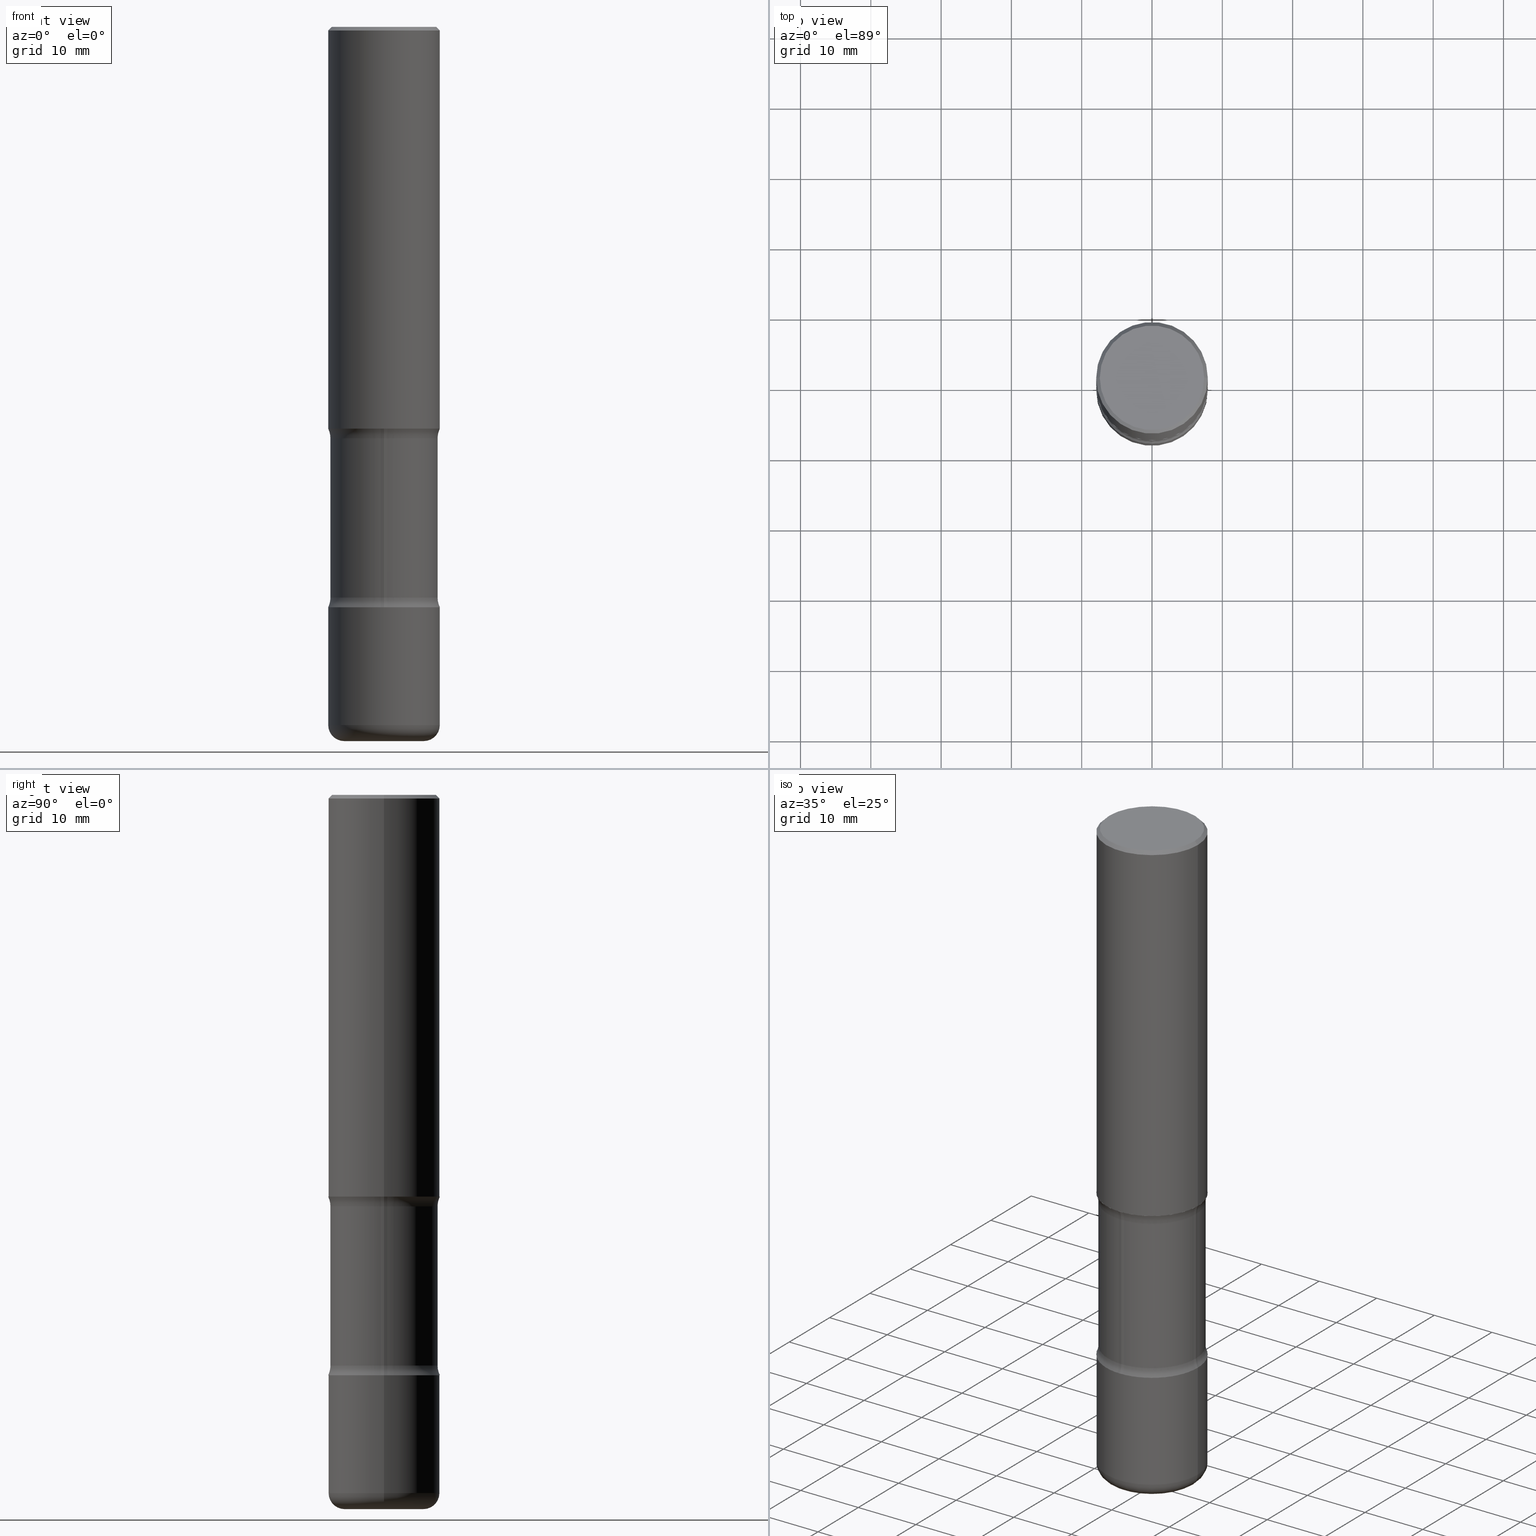
[diagram: canonical four-view strip — front | top / right | iso, engineering-drawing reading convention]
A machine part, canonical four-view strip (front | top / right | iso — engineering-drawing reading convention). The complete STEP part file that produces these views, byte-faithful:
ISO-10303-21;
HEADER;
FILE_DESCRIPTION (( 'STEP AP203' ),
    '1' );
FILE_NAME ('32781.STEP',
    '2023-03-11T07:01:26',
    ( '' ),
    ( '' ),
    'SwSTEP 2.0',
    'SolidWorks 2022',
    '' );
FILE_SCHEMA (( 'CONFIG_CONTROL_DESIGN' ));
ENDSEC;

DATA;
#1 = FACE_BOUND ( 'NONE', #288, .T. ) ;
#2 = EDGE_CURVE ( 'NONE', #374, #123, #215, .T. ) ;
#3 = DIRECTION ( 'NONE',  ( -2.445468806185136597E-29, 3.491481338843145583E-15, 1.000000000000000000 ) ) ;
#4 = DIRECTION ( 'NONE',  ( -2.445468806185136597E-29, 3.491481338843145583E-15, 1.000000000000000000 ) ) ;
#5 = EDGE_CURVE ( 'NONE', #442, #802, #637, .T. ) ;
#6 = FACE_OUTER_BOUND ( 'NONE', #471, .T. ) ;
#7 = AXIS2_PLACEMENT_3D ( 'NONE', #479, #545, #118 ) ;
#8 = CIRCLE ( 'NONE', #606, 0.3124999999999997224 ) ;
#9 = CIRCLE ( 'NONE', #261, 0.1912500000000000311 ) ;
#10 = CARTESIAN_POINT ( 'NONE',  ( 7.814529227654916590E-29, -1.115707667224927836E-14, -3.195513763205740432 ) ) ;
#11 = FACE_OUTER_BOUND ( 'NONE', #223, .T. ) ;
#12 = EDGE_CURVE ( 'NONE', #404, #464, #676, .T. ) ;
#13 = DIRECTION ( 'NONE',  ( -2.438088387897960049E-29, 3.491481338843145188E-15, 1.000000000000000000 ) ) ;
#14 = CYLINDRICAL_SURFACE ( 'NONE', #451, 0.3124999999999998890 ) ;
#15 = ADVANCED_FACE ( 'NONE', ( #366 ), #112, .F. ) ;
#16 = DIRECTION ( 'NONE',  ( -2.445468806185136597E-29, 3.491481338843145583E-15, 1.000000000000000000 ) ) ;
#17 = ORIENTED_EDGE ( 'NONE', *, *, #465, .T. ) ;
#18 = CARTESIAN_POINT ( 'NONE',  ( 4.890937612370289799E-31, -6.982962677686315028E-17, -0.02000000000000006981 ) ) ;
#19 = CIRCLE ( 'NONE', #34, 0.3125000000000000000 ) ;
#20 = PLANE ( 'NONE',  #344 ) ;
#21 = AXIS2_PLACEMENT_3D ( 'NONE', #600, #278, #392 ) ;
#22 = AXIS2_PLACEMENT_3D ( 'NONE', #726, #523, #410 ) ;
#23 = EDGE_CURVE ( 'NONE', #643, #764, #605, .T. ) ;
#24 = EDGE_LOOP ( 'NONE', ( #48, #236, #772, #419 ) ) ;
#25 = CIRCLE ( 'NONE', #130, 0.2999999999999997113 ) ;
#26 = CARTESIAN_POINT ( 'NONE',  ( 0.2225000000000000033, -1.520540123066189404E-14, -3.910000000000000142 ) ) ;
#27 = FACE_OUTER_BOUND ( 'NONE', #353, .T. ) ;
#28 = ORIENTED_EDGE ( 'NONE', *, *, #601, .T. ) ;
#29 = EDGE_CURVE ( 'NONE', #513, #150, #801, .T. ) ;
#30 = CARTESIAN_POINT ( 'NONE',  ( 5.502304813916557343E-29, -7.855833012397078448E-15, -2.250000000000000000 ) ) ;
#31 = CARTESIAN_POINT ( 'NONE',  ( -0.4249999999999997113, -8.137270045268853837E-15, -3.195513763205740432 ) ) ;
#32 = APPROVAL_STATUS ( 'not_yet_approved' ) ;
#33 = ORIENTED_EDGE ( 'NONE', *, *, #521, .F. ) ;
#34 = AXIS2_PLACEMENT_3D ( 'NONE', #324, #253, #507 ) ;
#35 = CIRCLE ( 'NONE', #142, 0.2999999999999996003 ) ;
#36 = CIRCLE ( 'NONE', #438, 0.3125000000000000000 ) ;
#37 = EDGE_CURVE ( 'NONE', #576, #238, #310, .T. ) ;
#38 =( CONVERSION_BASED_UNIT ( 'INCH', #95 ) LENGTH_UNIT ( ) NAMED_UNIT ( #116 ) );
#39 = VERTEX_POINT ( 'NONE', #44 ) ;
#40 = PRODUCT_DEFINITION ( 'UNKNOWN', '', #571, #766 ) ;
#41 = ORIENTED_EDGE ( 'NONE', *, *, #578, .T. ) ;
#42 = CARTESIAN_POINT ( 'NONE',  ( 0.000000000000000000, 0.000000000000000000, 0.000000000000000000 ) ) ;
#43 = ORIENTED_EDGE ( 'NONE', *, *, #712, .F. ) ;
#44 = CARTESIAN_POINT ( 'NONE',  ( 0.3125000000000000000, -1.003800884917403522E-14, -2.250000000000000000 ) ) ;
#45 = ADVANCED_FACE ( 'NONE', ( #127 ), #162, .F. ) ;
#46 = AXIS2_PLACEMENT_3D ( 'NONE', #756, #573, #701 ) ;
#47 = CIRCLE ( 'NONE', #21, 0.3125000000000000000 ) ;
#48 = ORIENTED_EDGE ( 'NONE', *, *, #195, .F. ) ;
#49 = CARTESIAN_POINT ( 'NONE',  ( 0.3124999999999997224, -2.213735251080464939E-15, -0.02000000000000006981 ) ) ;
#50 = CARTESIAN_POINT ( 'NONE',  ( 9.561783032183883600E-29, -1.365169203487670064E-14, -3.910000000000000142 ) ) ;
#51 = EDGE_CURVE ( 'NONE', #120, #188, #594, .T. ) ;
#52 = DIRECTION ( 'NONE',  ( -2.445468806185136877E-29, 3.491481338843145188E-15, 1.000000000000000000 ) ) ;
#53 = ORIENTED_EDGE ( 'NONE', *, *, #590, .T. ) ;
#54 = ORIENTED_EDGE ( 'NONE', *, *, #192, .F. ) ;
#55 = CARTESIAN_POINT ( 'NONE',  ( 4.890937612370289799E-31, -6.982962677686315028E-17, -0.02000000000000006981 ) ) ;
#56 = ORIENTED_EDGE ( 'NONE', *, *, #724, .T. ) ;
#57 = PERSON_AND_ORGANIZATION_ROLE ( 'creator' ) ;
#58 = CARTESIAN_POINT ( 'NONE',  ( -0.2225000000000000588, -1.190810687696637220E-14, -4.000000000000000000 ) ) ;
#59 = CARTESIAN_POINT ( 'NONE',  ( 2.094888803305975071E-15, 0.2999999999999857225, -3.993321402834704603 ) ) ;
#60 = FACE_OUTER_BOUND ( 'NONE', #152, .T. ) ;
#61 = AXIS2_PLACEMENT_3D ( 'NONE', #560, #315, #618 ) ;
#62 = AXIS2_PLACEMENT_3D ( 'NONE', #519, #207, #455 ) ;
#63 = EDGE_CURVE ( 'NONE', #291, #669, #554, .T. ) ;
#64 = ORIENTED_EDGE ( 'NONE', *, *, #557, .T. ) ;
#65 = DIRECTION ( 'NONE',  ( -2.445468806185136597E-29, 3.491481338843145583E-15, 1.000000000000000000 ) ) ;
#66 = ORIENTED_EDGE ( 'NONE', *, *, #774, .F. ) ;
#67 = MANIFOLD_SOLID_BREP ( 'Body-Move/Copy2[3]', #647 ) ;
#68 = LINE ( 'NONE', #806, #217 ) ;
#69 = VERTEX_POINT ( 'NONE', #172 ) ;
#70 = DIRECTION ( 'NONE',  ( 2.446204602497214261E-29, -3.490427636645325052E-15, -1.000000000000000000 ) ) ;
#71 = CARTESIAN_POINT ( 'NONE',  ( -2.058149399331359362E-15, -0.3000000000000135891, -3.993321402834702383 ) ) ;
#72 = ORIENTED_EDGE ( 'NONE', *, *, #386, .F. ) ;
#73 = CARTESIAN_POINT ( 'NONE',  ( -0.2999999999999996003, -5.774914723627244502E-15, -2.304486236794259568 ) ) ;
#74 = EDGE_CURVE ( 'NONE', #656, #731, #356, .T. ) ;
#75 = CARTESIAN_POINT ( 'NONE',  ( 0.000000000000000000, 0.000000000000000000, 0.000000000000000000 ) ) ;
#76 = AXIS2_PLACEMENT_3D ( 'NONE', #198, #132, #512 ) ;
#77 = CIRCLE ( 'NONE', #155, 0.2924999999999997047 ) ;
#78 = LOCAL_TIME ( 2, 1, 26.00000000000000000, #528 ) ;
#79 = DIRECTION ( 'NONE',  ( 6.982962677686265922E-15, 1.000000000000000000, -3.490427636645325052E-15 ) ) ;
#80 = CC_DESIGN_PERSON_AND_ORGANIZATION_ASSIGNMENT ( #550, #481, ( #143 ) ) ;
#81 = PLANE ( 'NONE',  #156 ) ;
#82 = FACE_OUTER_BOUND ( 'NONE', #409, .T. ) ;
#83 = FACE_OUTER_BOUND ( 'NONE', #459, .T. ) ;
#84 = FACE_OUTER_BOUND ( 'NONE', #361, .T. ) ;
#85 = DIRECTION ( 'NONE',  ( -1.000000000000000000, 6.982962677686265922E-15, -4.876176775795935793E-29 ) ) ;
#86 = EDGE_CURVE ( 'NONE', #731, #802, #97, .T. ) ;
#87 = CARTESIAN_POINT ( 'NONE',  ( -2.915711649052841828E-15, -0.4250000000000077049, -2.304486236794257792 ) ) ;
#88 = AXIS2_PLACEMENT_3D ( 'NONE', #682, #126, #121 ) ;
#89 = LOCAL_TIME ( 2, 1, 26.00000000000000000, #486 ) ;
#90 = MANIFOLD_SOLID_BREP ( 'Body-Move/Copy2[4]', #420 ) ;
#91 = DIRECTION ( 'NONE',  ( 7.105427357601001859E-15, 1.000000000000000000, -3.491481338843145583E-15 ) ) ;
#92 = CARTESIAN_POINT ( 'NONE',  ( 0.3125000000000000000, -1.003800884917403837E-14, -2.250000000000000000 ) ) ;
#93 = DIRECTION ( 'NONE',  ( 1.000000000000000000, -6.982962677686265133E-15, 0.000000000000000000 ) ) ;
#94 = ORIENTED_EDGE ( 'NONE', *, *, #774, .T. ) ;
#95 = LENGTH_MEASURE_WITH_UNIT ( LENGTH_MEASURE( 0.02539999999999999897 ), #723 );
#96 = EDGE_CURVE ( 'NONE', #464, #669, #612, .T. ) ;
#97 = CIRCLE ( 'NONE', #461, 0.2999999999999997113 ) ;
#98 = LINE ( 'NONE', #658, #585 ) ;
#99 = VECTOR ( 'NONE', #593, 39.37007874015748854 ) ;
#100 = EDGE_CURVE ( 'NONE', #157, #709, #368, .T. ) ;
#101 = ORIENTED_EDGE ( 'NONE', *, *, #634, .T. ) ;
#102 =( NAMED_UNIT ( * ) PLANE_ANGLE_UNIT ( ) SI_UNIT ( $, .RADIAN. ) );
#103 = DIRECTION ( 'NONE',  ( 6.860497997771529985E-15, 1.000000000000000000, 0.000000000000000000 ) ) ;
#104 = ORIENTED_EDGE ( 'NONE', *, *, #303, .F. ) ;
#105 = ADVANCED_FACE ( 'NONE', ( #412 ), #286, .F. ) ;
#106 = DIRECTION ( 'NONE',  ( 1.000000000000000000, -6.982962677686265133E-15, 4.876067333457694521E-29 ) ) ;
#107 = CARTESIAN_POINT ( 'NONE',  ( 0.000000000000000000, 0.000000000000000000, 0.000000000000000000 ) ) ;
#108 = DIRECTION ( 'NONE',  ( 1.000000000000000000, -6.982962677686266711E-15, 4.876176775795935232E-29 ) ) ;
#109 = ORIENTED_EDGE ( 'NONE', *, *, #29, .T. ) ;
#110 = DIRECTION ( 'NONE',  ( -6.982962677686266711E-15, -1.000000000000000000, 3.491481338843145583E-15 ) ) ;
#111 = EDGE_LOOP ( 'NONE', ( #452, #538, #551, #117 ) ) ;
#112 = TOROIDAL_SURFACE ( 'NONE', #659, 0.4249999999999996558, 0.1250000000000000000 ) ;
#113 = CIRCLE ( 'NONE', #570, 0.2225000000000000588 ) ;
#114 =( GEOMETRIC_REPRESENTATION_CONTEXT ( 3 ) GLOBAL_UNCERTAINTY_ASSIGNED_CONTEXT ( ( #269 ) ) GLOBAL_UNIT_ASSIGNED_CONTEXT ( ( #38, #102, #668 ) ) REPRESENTATION_CONTEXT ( 'NONE', 'WORKASPACE' ) );
#115 = DIRECTION ( 'NONE',  ( -2.445468806185136597E-29, 3.491481338843145583E-15, 1.000000000000000000 ) ) ;
#116 = DIMENSIONAL_EXPONENTS ( 1.000000000000000000, 0.000000000000000000, 0.000000000000000000, 0.000000000000000000, 0.000000000000000000, 0.000000000000000000, 0.000000000000000000 ) ;
#117 = ORIENTED_EDGE ( 'NONE', *, *, #566, .F. ) ;
#118 = DIRECTION ( 'NONE',  ( 1.000000000000000000, -6.982962677686261189E-15, 0.000000000000000000 ) ) ;
#119 = COORDINATED_UNIVERSAL_TIME_OFFSET ( 5, 0, .BEHIND. ) ;
#120 = VERTEX_POINT ( 'NONE', #251 ) ;
#121 = DIRECTION ( 'NONE',  ( 6.982962677686265133E-15, 1.000000000000000000, -3.642463991552355691E-15 ) ) ;
#122 = DIRECTION ( 'NONE',  ( -2.445468806185136597E-29, 3.491481338843145583E-15, 1.000000000000000000 ) ) ;
#123 = VERTEX_POINT ( 'NONE', #608 ) ;
#124 = EDGE_LOOP ( 'NONE', ( #518, #41 ) ) ;
#125 = ADVANCED_FACE ( 'NONE', ( #667 ), #702, .T. ) ;
#126 = DIRECTION ( 'NONE',  ( 2.446204602497214261E-29, -3.490427636645325052E-15, -1.000000000000000000 ) ) ;
#127 = FACE_OUTER_BOUND ( 'NONE', #714, .T. ) ;
#128 = DIRECTION ( 'NONE',  ( 1.000000000000000000, -6.982962677686266711E-15, 0.000000000000000000 ) ) ;
#129 = CIRCLE ( 'NONE', #472, 0.3125000000000000000 ) ;
#130 = AXIS2_PLACEMENT_3D ( 'NONE', #345, #164, #347 ) ;
#131 = CIRCLE ( 'NONE', #639, 0.08999999999999992728 ) ;
#132 = DIRECTION ( 'NONE',  ( -2.445468806185136597E-29, 3.491481338843145583E-15, 1.000000000000000000 ) ) ;
#133 = APPROVAL_ROLE ( '' ) ;
#134 = DIRECTION ( 'NONE',  ( 1.000000000000000000, -6.982962677686266711E-15, 4.876176775795936353E-29 ) ) ;
#135 = ORIENTED_EDGE ( 'NONE', *, *, #468, .F. ) ;
#136 = EDGE_CURVE ( 'NONE', #805, #576, #294, .T. ) ;
#137 = DIRECTION ( 'NONE',  ( -2.445468806185136597E-29, 3.491481338843145583E-15, 1.000000000000000000 ) ) ;
#138 = DIRECTION ( 'NONE',  ( 1.000000000000000000, -6.982962677686264344E-15, 4.883557194083112340E-29 ) ) ;
#139 = ADVANCED_FACE ( 'NONE', ( #699 ), #196, .F. ) ;
#140 = CARTESIAN_POINT ( 'NONE',  ( 2.094888803305933261E-15, 0.2999999999999915512, -2.304486236794260456 ) ) ;
#141 = TOROIDAL_SURFACE ( 'NONE', #580, 0.4249999999999997113, 0.1250000000000000000 ) ;
#142 = AXIS2_PLACEMENT_3D ( 'NONE', #252, #744, #567 ) ;
#143 = SECURITY_CLASSIFICATION ( '', '', #614 ) ;
#144 = CARTESIAN_POINT ( 'NONE',  ( 7.947773620101693940E-29, -1.134731435124022443E-14, -3.250000000000000000 ) ) ;
#145 = DIRECTION ( 'NONE',  ( -1.000000000000000000, 6.982962677686266711E-15, 0.000000000000000000 ) ) ;
#146 = CARTESIAN_POINT ( 'NONE',  ( 9.561783032183883600E-29, -1.365169203487670064E-14, -3.910000000000000142 ) ) ;
#147 = ORIENTED_EDGE ( 'NONE', *, *, #689, .F. ) ;
#148 = CARTESIAN_POINT ( 'NONE',  ( 0.2999999999999996558, -9.950721815702955306E-15, -2.250000000000000000 ) ) ;
#149 = ADVANCED_FACE ( 'NONE', ( #633 ), #247, .F. ) ;
#150 = VERTEX_POINT ( 'NONE', #446 ) ;
#151 = DIRECTION ( 'NONE',  ( 7.105427357601001859E-15, 1.000000000000000000, -3.491481338843145583E-15 ) ) ;
#152 = EDGE_LOOP ( 'NONE', ( #520, #233, #428, #721 ) ) ;
#153 = DIRECTION ( 'NONE',  ( -2.445468806185136877E-29, 3.491481338843145188E-15, 1.000000000000000000 ) ) ;
#154 = DIRECTION ( 'NONE',  ( 2.438088387897960049E-29, -3.491481338843145188E-15, -1.000000000000000000 ) ) ;
#155 = AXIS2_PLACEMENT_3D ( 'NONE', #281, #526, #650 ) ;
#156 = AXIS2_PLACEMENT_3D ( 'NONE', #588, #325, #270 ) ;
#157 = VERTEX_POINT ( 'NONE', #760 ) ;
#158 = APPROVAL_DATE_TIME ( #220, #447 ) ;
#159 = ADVANCED_FACE ( 'NONE', ( #497 ), #558, .T. ) ;
#160 = PERSON_AND_ORGANIZATION ( #734, #803 ) ;
#161 = ORIENTED_EDGE ( 'NONE', *, *, #788, .F. ) ;
#162 = TOROIDAL_SURFACE ( 'NONE', #271, 0.4249999999999996558, 0.1250000000000000000 ) ;
#163 = AXIS2_PLACEMENT_3D ( 'NONE', #190, #610, #746 ) ;
#164 = DIRECTION ( 'NONE',  ( 2.446204602497214261E-29, -3.490427636645325052E-15, -1.000000000000000000 ) ) ;
#165 = AXIS2_PLACEMENT_3D ( 'NONE', #635, #572, #263 ) ;
#166 = ORIENTED_EDGE ( 'NONE', *, *, #23, .F. ) ;
#167 = CARTESIAN_POINT ( 'NONE',  ( 2.042516583223230567E-15, 0.2924999999999997047, -1.016989779121518604E-15 ) ) ;
#168 = ORIENTED_EDGE ( 'NONE', *, *, #415, .T. ) ;
#169 = DIRECTION ( 'NONE',  ( 6.982962677686265922E-15, 1.000000000000000000, -3.490427636645325052E-15 ) ) ;
#170 = DIRECTION ( 'NONE',  ( -0.9993908270190957621, 6.856857904024568303E-15, -0.03489949670249752056 ) ) ;
#171 = DIRECTION ( 'NONE',  ( -1.000000000000000000, 7.105427357601001859E-15, 0.000000000000000000 ) ) ;
#172 = CARTESIAN_POINT ( 'NONE',  ( -0.3125000000000000000, -5.635386963146764579E-15, -2.250000000000000000 ) ) ;
#173 = ORIENTED_EDGE ( 'NONE', *, *, #627, .T. ) ;
#174 = CYLINDRICAL_SURFACE ( 'NONE', #559, 0.3124999999999998890 ) ;
#175 = DIRECTION ( 'NONE',  ( 2.446204602497214261E-29, -3.490427636645325052E-15, -1.000000000000000000 ) ) ;
#176 = ORIENTED_EDGE ( 'NONE', *, *, #547, .T. ) ;
#177 = CIRCLE ( 'NONE', #436, 0.2999999999999996003 ) ;
#178 = AXIS2_PLACEMENT_3D ( 'NONE', #574, #197, #85 ) ;
#179 = CARTESIAN_POINT ( 'NONE',  ( 0.3125000000000000000, -1.583386787165366057E-14, -3.910000000000000142 ) ) ;
#180 = DIRECTION ( 'NONE',  ( 2.446204602497214261E-29, -3.490427636645325052E-15, -1.000000000000000000 ) ) ;
#181 = ADVANCED_FACE ( 'NONE', ( #264 ), #343, .F. ) ;
#182 = CARTESIAN_POINT ( 'NONE',  ( 7.947773620101693940E-29, -1.134731435124022443E-14, -3.250000000000000000 ) ) ;
#183 = DIRECTION ( 'NONE',  ( 1.000000000000000000, -6.982962677686269077E-15, 0.000000000000000000 ) ) ;
#184 = ORIENTED_EDGE ( 'NONE', *, *, #724, .F. ) ;
#185 = ADVANCED_FACE ( 'NONE', ( #565 ), #568, .T. ) ;
#186 = DIRECTION ( 'NONE',  ( 1.000000000000000000, -6.982962677686266711E-15, 0.000000000000000000 ) ) ;
#187 = COORDINATED_UNIVERSAL_TIME_OFFSET ( 5, 0, .BEHIND. ) ;
#188 = VERTEX_POINT ( 'NONE', #318 ) ;
#189 = AXIS2_PLACEMENT_3D ( 'NONE', #301, #122, #106 ) ;
#190 = CARTESIAN_POINT ( 'NONE',  ( 7.947773620101693940E-29, -1.134731435124022443E-14, -3.250000000000000000 ) ) ;
#191 = AXIS2_PLACEMENT_3D ( 'NONE', #42, #292, #352 ) ;
#192 = EDGE_CURVE ( 'NONE', #398, #592, #394, .T. ) ;
#193 = CYLINDRICAL_SURFACE ( 'NONE', #322, 0.2999999999999996558 ) ;
#194 = CARTESIAN_POINT ( 'NONE',  ( 2.967759138016716600E-15, 0.4249999999999915512, -2.304486236794260456 ) ) ;
#195 = EDGE_CURVE ( 'NONE', #791, #656, #177, .T. ) ;
#196 = PLANE ( 'NONE',  #380 ) ;
#197 = DIRECTION ( 'NONE',  ( 2.438088387897960049E-29, -3.491481338843145188E-15, -1.000000000000000000 ) ) ;
#198 = CARTESIAN_POINT ( 'NONE',  ( 5.635549206363335813E-29, -8.046070691388022931E-15, -2.304486236794259124 ) ) ;
#199 = DIRECTION ( 'NONE',  ( -2.445468806185136597E-29, 3.491481338843145583E-15, 1.000000000000000000 ) ) ;
#200 = EDGE_LOOP ( 'NONE', ( #66, #539, #293 ) ) ;
#201 = AXIS2_PLACEMENT_3D ( 'NONE', #548, #110, #495 ) ;
#202 = AXIS2_PLACEMENT_3D ( 'NONE', #768, #275, #587 ) ;
#203 = AXIS2_PLACEMENT_3D ( 'NONE', #525, #213, #508 ) ;
#204 = ORIENTED_EDGE ( 'NONE', *, *, #2, .T. ) ;
#205 = EDGE_CURVE ( 'NONE', #680, #442, #19, .T. ) ;
#206 = DIRECTION ( 'NONE',  ( 1.000000000000000000, -6.982962677686265133E-15, 0.000000000000000000 ) ) ;
#207 = DIRECTION ( 'NONE',  ( -1.000000000000000000, 6.982962677686265922E-15, -4.883557194083112340E-29 ) ) ;
#208 = ORIENTED_EDGE ( 'NONE', *, *, #74, .F. ) ;
#209 = DIRECTION ( 'NONE',  ( 1.000000000000000000, -6.982962677686273810E-15, 0.000000000000000000 ) ) ;
#210 = ORIENTED_EDGE ( 'NONE', *, *, #37, .F. ) ;
#211 = CYLINDRICAL_SURFACE ( 'NONE', #295, 0.2999999999999996558 ) ;
#212 = ORIENTED_EDGE ( 'NONE', *, *, #136, .F. ) ;
#213 = DIRECTION ( 'NONE',  ( -2.445468806185136597E-29, 3.491481338843145583E-15, 1.000000000000000000 ) ) ;
#214 = ADVANCED_FACE ( 'NONE', ( #435, #1 ), #696, .F. ) ;
#215 = CIRCLE ( 'NONE', #201, 0.1249999999999999584 ) ;
#216 = FACE_OUTER_BOUND ( 'NONE', #308, .T. ) ;
#217 = VECTOR ( 'NONE', #52, 39.37007874015748143 ) ;
#218 = AXIS2_PLACEMENT_3D ( 'NONE', #107, #655, #541 ) ;
#219 = ORIENTED_EDGE ( 'NONE', *, *, #547, .F. ) ;
#220 = DATE_AND_TIME ( #778, #78 ) ;
#221 = CC_DESIGN_PERSON_AND_ORGANIZATION_ASSIGNMENT ( #609, #694, ( #571 ) ) ;
#222 = ORIENTED_EDGE ( 'NONE', *, *, #627, .F. ) ;
#223 = EDGE_LOOP ( 'NONE', ( #718, #328 ) ) ;
#224 = DATE_AND_TIME ( #779, #383 ) ;
#225 = DIRECTION ( 'NONE',  ( 1.000000000000000000, -6.982962677686269866E-15, 0.000000000000000000 ) ) ;
#226 = VERTEX_POINT ( 'NONE', #73 ) ;
#227 = TOROIDAL_SURFACE ( 'NONE', #260, 0.4249999999999997113, 0.1250000000000000000 ) ;
#228 = CARTESIAN_POINT ( 'NONE',  ( 5.501569017604479118E-29, -7.856886714594898190E-15, -2.250000000000000000 ) ) ;
#229 = CC_DESIGN_APPROVAL ( #330, ( #143 ) ) ;
#230 = DIRECTION ( 'NONE',  ( 1.000000000000000000, -6.982962677686268288E-15, 0.000000000000000000 ) ) ;
#231 = DIRECTION ( 'NONE',  ( 6.982962677686265922E-15, 1.000000000000000000, -3.490427636645325052E-15 ) ) ;
#232 = APPLICATION_CONTEXT ( 'configuration controlled 3d designs of mechanical parts and assemblies' ) ;
#233 = ORIENTED_EDGE ( 'NONE', *, *, #590, .F. ) ;
#234 = EDGE_LOOP ( 'NONE', ( #219, #43 ) ) ;
#235 = CARTESIAN_POINT ( 'NONE',  ( 9.768481194864883045E-29, -1.393839938646152611E-14, -3.993321402834703271 ) ) ;
#236 = ORIENTED_EDGE ( 'NONE', *, *, #337, .T. ) ;
#237 = ORIENTED_EDGE ( 'NONE', *, *, #770, .T. ) ;
#238 = VERTEX_POINT ( 'NONE', #388 ) ;
#239 = DATE_AND_TIME ( #429, #597 ) ;
#240 = ORIENTED_EDGE ( 'NONE', *, *, #96, .T. ) ;
#241 = ORIENTED_EDGE ( 'NONE', *, *, #712, .T. ) ;
#242 = CARTESIAN_POINT ( 'NONE',  ( -0.2924999999999997047, 2.077431396611662216E-15, 8.537024980186416602E-18 ) ) ;
#243 = ORIENTED_EDGE ( 'NONE', *, *, #303, .T. ) ;
#244 = ADVANCED_FACE ( 'NONE', ( #502 ), #490, .T. ) ;
#245 = CARTESIAN_POINT ( 'NONE',  ( 7.814529227654916590E-29, -1.115707667224927836E-14, -3.195513763205740432 ) ) ;
#246 = ORIENTED_EDGE ( 'NONE', *, *, #681, .T. ) ;
#247 = TOROIDAL_SURFACE ( 'NONE', #76, 0.4249999999999996558, 0.1250000000000000000 ) ;
#248 = CIRCLE ( 'NONE', #703, 0.3125000000000000000 ) ;
#249 = DIRECTION ( 'NONE',  ( -2.445468806185136877E-29, 3.491481338843145188E-15, 1.000000000000000000 ) ) ;
#250 = CC_DESIGN_DATE_AND_TIME_ASSIGNMENT ( #224, #466, ( #40 ) ) ;
#251 = CARTESIAN_POINT ( 'NONE',  ( 0.3125000000000000000, -1.352949018801718277E-14, -3.250000000000000000 ) ) ;
#252 = CARTESIAN_POINT ( 'NONE',  ( 5.635549206363335813E-29, -8.046070691388022931E-15, -2.304486236794259568 ) ) ;
#253 = DIRECTION ( 'NONE',  ( 2.446204602497214261E-29, -3.490427636645325052E-15, -1.000000000000000000 ) ) ;
#254 = ADVANCED_FACE ( 'NONE', ( #84 ), #141, .F. ) ;
#255 = CARTESIAN_POINT ( 'NONE',  ( 5.501569017604479118E-29, -7.856886714594898190E-15, -2.250000000000000000 ) ) ;
#256 = DIRECTION ( 'NONE',  ( 6.982962677686265133E-15, 1.000000000000000000, -3.642463991552355691E-15 ) ) ;
#257 = AXIS2_PLACEMENT_3D ( 'NONE', #50, #492, #183 ) ;
#258 = ADVANCED_FACE ( 'NONE', ( #82 ), #193, .T. ) ;
#259 = DIRECTION ( 'NONE',  ( 6.982962677686265922E-15, 1.000000000000000000, -3.490427636645325052E-15 ) ) ;
#260 = AXIS2_PLACEMENT_3D ( 'NONE', #477, #414, #458 ) ;
#261 = AXIS2_PLACEMENT_3D ( 'NONE', #783, #780, #225 ) ;
#262 = DIRECTION ( 'NONE',  ( 1.000000000000000000, -6.982962677686265922E-15, 4.876176775795935793E-29 ) ) ;
#263 = DIRECTION ( 'NONE',  ( -1.000000000000000000, 6.982962677686265922E-15, -4.876176775795935793E-29 ) ) ;
#264 = FACE_OUTER_BOUND ( 'NONE', #385, .T. ) ;
#265 = EDGE_LOOP ( 'NONE', ( #533, #478, #456, #411 ) ) ;
#266 = DIRECTION ( 'NONE',  ( -1.000000000000000000, 6.982962677686265922E-15, 0.000000000000000000 ) ) ;
#267 = EDGE_CURVE ( 'NONE', #291, #39, #543, .T. ) ;
#268 = DIRECTION ( 'NONE',  ( 1.000000000000000000, -6.982962677686268288E-15, 0.000000000000000000 ) ) ;
#269 = UNCERTAINTY_MEASURE_WITH_UNIT (LENGTH_MEASURE( 1.000000000000000082E-05 ), #38, 'distance_accuracy_value', 'NONE');
#270 = DIRECTION ( 'NONE',  ( 1.000000000000000000, -6.982962677686265922E-15, 4.876176775795935793E-29 ) ) ;
#271 = AXIS2_PLACEMENT_3D ( 'NONE', #474, #305, #431 ) ;
#272 = EDGE_LOOP ( 'NONE', ( #72, #432, #603, #176 ) ) ;
#273 = VECTOR ( 'NONE', #562, 39.37007874015748143 ) ;
#274 = CIRCLE ( 'NONE', #313, 0.08999999999999992728 ) ;
#275 = DIRECTION ( 'NONE',  ( 2.445468806185136597E-29, -3.491481338843145583E-15, -1.000000000000000000 ) ) ;
#276 = ORIENTED_EDGE ( 'NONE', *, *, #415, .F. ) ;
#277 = DIRECTION ( 'NONE',  ( 2.445468806185136597E-29, -3.491481338843145583E-15, -1.000000000000000000 ) ) ;
#278 = DIRECTION ( 'NONE',  ( -2.445468806185136597E-29, 3.491481338843145583E-15, 1.000000000000000000 ) ) ;
#279 = FACE_OUTER_BOUND ( 'NONE', #124, .T. ) ;
#280 = ADVANCED_FACE ( 'NONE', ( #396 ), #646, .T. ) ;
#281 = CARTESIAN_POINT ( 'NONE',  ( -2.087702828670439639E-46, 2.980686340760894400E-32, 8.537024980200822558E-18 ) ) ;
#282 = ORIENTED_EDGE ( 'NONE', *, *, #285, .T. ) ;
#283 = APPROVAL_ROLE ( '' ) ;
#284 = VERTEX_POINT ( 'NONE', #235 ) ;
#285 = EDGE_CURVE ( 'NONE', #576, #805, #422, .T. ) ;
#286 = TOROIDAL_SURFACE ( 'NONE', #569, 0.4249999999999997113, 0.1250000000000000000 ) ;
#287 = CONICAL_SURFACE ( 'NONE', #784, 1127.411546571591998, 1.535889741755013471 ) ;
#288 = EDGE_LOOP ( 'NONE', ( #237, #671 ) ) ;
#289 = PERSON_AND_ORGANIZATION_ROLE ( 'creator' ) ;
#290 = ORIENTED_EDGE ( 'NONE', *, *, #433, .T. ) ;
#291 = VERTEX_POINT ( 'NONE', #482 ) ;
#292 = DIRECTION ( 'NONE',  ( -2.445468806185136597E-29, 3.491481338843145583E-15, 1.000000000000000000 ) ) ;
#293 = ORIENTED_EDGE ( 'NONE', *, *, #770, .F. ) ;
#294 = CIRCLE ( 'NONE', #622, 0.2999999999999997113 ) ;
#295 = AXIS2_PLACEMENT_3D ( 'NONE', #319, #3, #186 ) ;
#296 = VERTEX_POINT ( 'NONE', #49 ) ;
#297 = ORIENTED_EDGE ( 'NONE', *, *, #51, .F. ) ;
#298 = PERSON_AND_ORGANIZATION ( #734, #803 ) ;
#299 = PLANE ( 'NONE',  #22 ) ;
#300 = ORIENTED_EDGE ( 'NONE', *, *, #29, .F. ) ;
#301 = CARTESIAN_POINT ( 'NONE',  ( -2.087702828670439639E-46, 2.980686340760894400E-32, 8.537024980200822558E-18 ) ) ;
#302 = EDGE_LOOP ( 'NONE', ( #166, #135 ) ) ;
#303 = EDGE_CURVE ( 'NONE', #464, #404, #77, .T. ) ;
#304 = CARTESIAN_POINT ( 'NONE',  ( 4.890937612370289799E-31, -6.982962677686315028E-17, -0.02000000000000006981 ) ) ;
#305 = DIRECTION ( 'NONE',  ( -2.445468806185136597E-29, 3.491481338843145583E-15, 1.000000000000000000 ) ) ;
#306 = LINE ( 'NONE', #555, #462 ) ;
#307 = ADVANCED_FACE ( 'NONE', ( #216 ), #20, .F. ) ;
#308 = EDGE_LOOP ( 'NONE', ( #243, #467 ) ) ;
#309 = EDGE_LOOP ( 'NONE', ( #485, #524, #397, #276 ) ) ;
#310 = CIRCLE ( 'NONE', #7, 0.1250000000000000278 ) ;
#311 = PERSON_AND_ORGANIZATION ( #734, #803 ) ;
#312 = TOROIDAL_SURFACE ( 'NONE', #450, 0.4249999999999996558, 0.1250000000000000000 ) ;
#313 = AXIS2_PLACEMENT_3D ( 'NONE', #457, #91, #711 ) ;
#314 = DIRECTION ( 'NONE',  ( 2.446204602497214261E-29, -3.490427636645325052E-15, -1.000000000000000000 ) ) ;
#315 = DIRECTION ( 'NONE',  ( -2.445468806185136597E-29, 3.491481338843145583E-15, 1.000000000000000000 ) ) ;
#316 = APPROVAL_DATE_TIME ( #437, #509 ) ;
#317 = CARTESIAN_POINT ( 'NONE',  ( 0.3124999999999998890, -2.182175836776957558E-15, 1.523805242436229235E-29 ) ) ;
#318 = CARTESIAN_POINT ( 'NONE',  ( -0.3125000000000000000, -1.027905714380814945E-14, -3.250000000000000000 ) ) ;
#319 = CARTESIAN_POINT ( 'NONE',  ( 5.502304813916557343E-29, -7.855833012397078448E-15, -2.250000000000000000 ) ) ;
#320 = DIRECTION ( 'NONE',  ( -6.982962677686265922E-15, -1.000000000000000000, 3.490427636645325052E-15 ) ) ;
#321 = CARTESIAN_POINT ( 'NONE',  ( 5.502304813916557343E-29, -7.855833012397078448E-15, -2.250000000000000000 ) ) ;
#322 = AXIS2_PLACEMENT_3D ( 'NONE', #754, #327, #377 ) ;
#323 = CC_DESIGN_SECURITY_CLASSIFICATION ( #143, ( #571 ) ) ;
#324 = CARTESIAN_POINT ( 'NONE',  ( 7.947773620101693940E-29, -1.134731435124022443E-14, -3.250000000000000000 ) ) ;
#325 = DIRECTION ( 'NONE',  ( -2.438088387897960049E-29, 3.491481338843145188E-15, 1.000000000000000000 ) ) ;
#326 = ADVANCED_FACE ( 'NONE', ( #579 ), #174, .T. ) ;
#327 = DIRECTION ( 'NONE',  ( 2.446204602497214261E-29, -3.490427636645325052E-15, -1.000000000000000000 ) ) ;
#328 = ORIENTED_EDGE ( 'NONE', *, *, #267, .F. ) ;
#329 = DIRECTION ( 'NONE',  ( 1.000000000000000000, -6.982962677686267499E-15, 0.000000000000000000 ) ) ;
#330 = APPROVAL ( #743, 'UNSPECIFIED' ) ;
#331 = FACE_OUTER_BOUND ( 'NONE', #200, .T. ) ;
#332 = ORIENTED_EDGE ( 'NONE', *, *, #195, .T. ) ;
#333 = DIRECTION ( 'NONE',  ( 1.000000000000000000, -6.982962677686265133E-15, 0.000000000000000000 ) ) ;
#334 = AXIS2_PLACEMENT_3D ( 'NONE', #146, #644, #641 ) ;
#335 = CIRCLE ( 'NONE', #88, 0.2999999999999996003 ) ;
#336 = DIRECTION ( 'NONE',  ( -2.445468806185136597E-29, 3.491481338843145583E-15, 1.000000000000000000 ) ) ;
#337 = EDGE_CURVE ( 'NONE', #791, #764, #725, .T. ) ;
#338 = DIRECTION ( 'NONE',  ( -6.982962677686266711E-15, -1.000000000000000000, 3.491481338843145583E-15 ) ) ;
#339 = DIRECTION ( 'NONE',  ( 6.982962677686266711E-15, 1.000000000000000000, -3.642463991552354902E-15 ) ) ;
#340 = CC_DESIGN_PERSON_AND_ORGANIZATION_ASSIGNMENT ( #399, #289, ( #40 ) ) ;
#341 = PERSON_AND_ORGANIZATION ( #734, #803 ) ;
#342 = CARTESIAN_POINT ( 'NONE',  ( -0.2999999999999997113, -9.076158383479444418E-15, -3.195513763205740432 ) ) ;
#343 = TOROIDAL_SURFACE ( 'NONE', #529, 0.4249999999999997113, 0.1250000000000000000 ) ;
#344 = AXIS2_PLACEMENT_3D ( 'NONE', #167, #154, #775 ) ;
#345 = CARTESIAN_POINT ( 'NONE',  ( 7.814489136882825086E-29, -1.115713408451673984E-14, -3.195513763205740432 ) ) ;
#346 = EDGE_LOOP ( 'NONE', ( #109, #28, #297, #598 ) ) ;
#347 = DIRECTION ( 'NONE',  ( 6.982962677686266711E-15, 1.000000000000000000, -3.642463991552354113E-15 ) ) ;
#348 = CARTESIAN_POINT ( 'NONE',  ( 7.814529227654916590E-29, -1.115707667224927836E-14, -3.195513763205740432 ) ) ;
#349 = PRODUCT_RELATED_PRODUCT_CATEGORY ( 'detail', '', ( #611 ) ) ;
#350 = DIRECTION ( 'NONE',  ( -1.000000000000000000, 6.982962677686266711E-15, 0.000000000000000000 ) ) ;
#351 = MANIFOLD_SOLID_BREP ( 'Body-Move/Copy2[1]', #354 ) ;
#352 = DIRECTION ( 'NONE',  ( 1.000000000000000000, -6.982962677686266711E-15, 4.876176775795936353E-29 ) ) ;
#353 = EDGE_LOOP ( 'NONE', ( #282, #753, #632, #184 ) ) ;
#354 = CLOSED_SHELL ( 'NONE', ( #421, #443, #244, #214, #159, #403, #685, #651 ) ) ;
#355 = AXIS2_PLACEMENT_3D ( 'NONE', #31, #151, #171 ) ;
#356 = LINE ( 'NONE', #59, #503 ) ;
#357 = CIRCLE ( 'NONE', #765, 0.3125000000000000000 ) ;
#358 = APPROVAL_ROLE ( '' ) ;
#359 = LINE ( 'NONE', #317, #596 ) ;
#360 = ORIENTED_EDGE ( 'NONE', *, *, #506, .F. ) ;
#361 = EDGE_LOOP ( 'NONE', ( #212, #781, #241, #210 ) ) ;
#362 = CARTESIAN_POINT ( 'NONE',  ( 7.814489136882825086E-29, -1.115713408451673984E-14, -3.195513763205740432 ) ) ;
#363 = CC_DESIGN_PERSON_AND_ORGANIZATION_ASSIGNMENT ( #311, #57, ( #571 ) ) ;
#364 = CYLINDRICAL_SURFACE ( 'NONE', #369, 0.2999999999999996558 ) ;
#365 = CARTESIAN_POINT ( 'NONE',  ( 9.781875224740546387E-29, -1.396592535537258233E-14, -4.000000000000000000 ) ) ;
#366 = FACE_OUTER_BOUND ( 'NONE', #24, .T. ) ;
#367 = AXIS2_PLACEMENT_3D ( 'NONE', #373, #379, #262 ) ;
#368 = CIRCLE ( 'NONE', #405, 0.1912500000000000311 ) ;
#369 = AXIS2_PLACEMENT_3D ( 'NONE', #755, #496, #128 ) ;
#370 = CONICAL_SURFACE ( 'NONE', #717, 0.3124999999999997224, 0.7853981633974479459 ) ;
#371 = DIRECTION ( 'NONE',  ( 1.000000000000000000, -6.982962677686269077E-15, 0.000000000000000000 ) ) ;
#372 = EDGE_CURVE ( 'NONE', #150, #513, #47, .T. ) ;
#373 = CARTESIAN_POINT ( 'NONE',  ( 5.502304813916557343E-29, -7.855833012397078448E-15, -2.250000000000000000 ) ) ;
#374 = VERTEX_POINT ( 'NONE', #92 ) ;
#375 = CALENDAR_DATE ( 2023, 11, 3 ) ;
#376 = CARTESIAN_POINT ( 'NONE',  ( 5.635549206363335813E-29, -8.046070691388022931E-15, -2.304486236794259124 ) ) ;
#377 = DIRECTION ( 'NONE',  ( 6.982962677686266711E-15, 1.000000000000000000, -3.642463991552354902E-15 ) ) ;
#378 = CARTESIAN_POINT ( 'NONE',  ( 2.182175836777012778E-15, 0.3124999999999921174, -2.250000000000001332 ) ) ;
#379 = DIRECTION ( 'NONE',  ( -2.438088387897960049E-29, 3.491481338843145188E-15, 1.000000000000000000 ) ) ;
#380 = AXIS2_PLACEMENT_3D ( 'NONE', #144, #628, #320 ) ;
#381 = LINE ( 'NONE', #663, #99 ) ;
#382 = VECTOR ( 'NONE', #314, 39.37007874015748143 ) ;
#383 = LOCAL_TIME ( 2, 1, 26.00000000000000000, #534 ) ;
#384 = DIRECTION ( 'NONE',  ( 2.446204602497214261E-29, -3.490427636645325052E-15, -1.000000000000000000 ) ) ;
#385 = EDGE_LOOP ( 'NONE', ( #798, #626, #290, #706 ) ) ;
#386 = EDGE_CURVE ( 'NONE', #805, #500, #544, .T. ) ;
#387 = DIRECTION ( 'NONE',  ( -1.000000000000000000, 7.105427357601006592E-15, 0.000000000000000000 ) ) ;
#388 = CARTESIAN_POINT ( 'NONE',  ( 0.3125000000000000555, -1.352949018801718277E-14, -3.250000000000000000 ) ) ;
#389 = ORIENTED_EDGE ( 'NONE', *, *, #12, .F. ) ;
#390 = PLANE ( 'NONE',  #178 ) ;
#391 = ADVANCED_FACE ( 'NONE', ( #463 ), #299, .F. ) ;
#392 = DIRECTION ( 'NONE',  ( 1.000000000000000000, -6.982962677686269077E-15, 0.000000000000000000 ) ) ;
#393 = CARTESIAN_POINT ( 'NONE',  ( 2.182175836777038022E-15, 0.3124999999999887867, -3.250000000000001332 ) ) ;
#394 = CIRCLE ( 'NONE', #46, 0.2225000000000000588 ) ;
#395 = CIRCLE ( 'NONE', #763, 0.3125000000000000000 ) ;
#396 = FACE_OUTER_BOUND ( 'NONE', #556, .T. ) ;
#397 = ORIENTED_EDGE ( 'NONE', *, *, #566, .T. ) ;
#398 = VERTEX_POINT ( 'NONE', #771 ) ;
#399 = PERSON_AND_ORGANIZATION ( #734, #803 ) ;
#400 = EDGE_LOOP ( 'NONE', ( #147, #684, #586, #683 ) ) ;
#401 = ORIENTED_EDGE ( 'NONE', *, *, #738, .F. ) ;
#402 = APPROVAL_STATUS ( 'not_yet_approved' ) ;
#403 = ADVANCED_FACE ( 'NONE', ( #713 ), #710, .T. ) ;
#404 = VERTEX_POINT ( 'NONE', #542 ) ;
#405 = AXIS2_PLACEMENT_3D ( 'NONE', #804, #65, #416 ) ;
#406 = CIRCLE ( 'NONE', #473, 0.3124999999999997224 ) ;
#407 = VECTOR ( 'NONE', #705, 39.37007874015748143 ) ;
#408 = ADVANCED_FACE ( 'NONE', ( #670 ), #227, .F. ) ;
#409 = EDGE_LOOP ( 'NONE', ( #53, #591, #530, #208 ) ) ;
#410 = DIRECTION ( 'NONE',  ( 6.982962677686265922E-15, 1.000000000000000000, -3.490427636645325052E-15 ) ) ;
#411 = ORIENTED_EDGE ( 'NONE', *, *, #578, .F. ) ;
#412 = FACE_OUTER_BOUND ( 'NONE', #469, .T. ) ;
#413 = CARTESIAN_POINT ( 'NONE',  ( 5.502304813916557343E-29, -7.855833012397078448E-15, -2.250000000000000000 ) ) ;
#414 = DIRECTION ( 'NONE',  ( -2.445468806185136597E-29, 3.491481338843145583E-15, 1.000000000000000000 ) ) ;
#415 = EDGE_CURVE ( 'NONE', #669, #296, #8, .T. ) ;
#416 = DIRECTION ( 'NONE',  ( 1.000000000000000000, -6.982962677686269866E-15, 0.000000000000000000 ) ) ;
#417 = ORIENTED_EDGE ( 'NONE', *, *, #192, .T. ) ;
#418 = CARTESIAN_POINT ( 'NONE',  ( 0.000000000000000000, 0.000000000000000000, 0.000000000000000000 ) ) ;
#419 = ORIENTED_EDGE ( 'NONE', *, *, #532, .F. ) ;
#420 = CLOSED_SHELL ( 'NONE', ( #258, #105, #15, #476, #391, #139, #181, #280 ) ) ;
#421 = ADVANCED_FACE ( 'NONE', ( #331 ), #715, .F. ) ;
#422 = CIRCLE ( 'NONE', #516, 0.2999999999999997113 ) ;
#423 = DIRECTION ( 'NONE',  ( 1.000000000000000000, -6.860497997771530774E-15, 4.840811783754381078E-29 ) ) ;
#424 = ORIENTED_EDGE ( 'NONE', *, *, #749, .F. ) ;
#425 = CIRCLE ( 'NONE', #517, 0.3125000000000000000 ) ;
#426 = DIRECTION ( 'NONE',  ( 6.982962677686265133E-15, 1.000000000000000000, -3.496765431890256920E-15 ) ) ;
#427 = DIRECTION ( 'NONE',  ( 2.445468806185136597E-29, -3.491481338843145583E-15, -1.000000000000000000 ) ) ;
#428 = ORIENTED_EDGE ( 'NONE', *, *, #532, .T. ) ;
#429 = CALENDAR_DATE ( 2023, 11, 3 ) ;
#430 = DIRECTION ( 'NONE',  ( -2.445468806185136597E-29, 3.491481338843145583E-15, 1.000000000000000000 ) ) ;
#431 = DIRECTION ( 'NONE',  ( 1.000000000000000000, -6.982962677686267499E-15, 4.883557194083112901E-29 ) ) ;
#432 = ORIENTED_EDGE ( 'NONE', *, *, #285, .F. ) ;
#433 = EDGE_CURVE ( 'NONE', #680, #731, #648, .T. ) ;
#434 = DIRECTION ( 'NONE',  ( 2.446204602497214261E-29, -3.490427636645325052E-15, -1.000000000000000000 ) ) ;
#435 = FACE_OUTER_BOUND ( 'NONE', #787, .T. ) ;
#436 = AXIS2_PLACEMENT_3D ( 'NONE', #444, #384, #256 ) ;
#437 = DATE_AND_TIME ( #793, #493 ) ;
#438 = AXIS2_PLACEMENT_3D ( 'NONE', #511, #757, #708 ) ;
#439 = CARTESIAN_POINT ( 'NONE',  ( 0.000000000000000000, 0.000000000000000000, 0.000000000000000000 ) ) ;
#440 = ADVANCED_FACE ( 'NONE', ( #27 ), #211, .T. ) ;
#441 = CARTESIAN_POINT ( 'NONE',  ( 0.3125000000000000000, -2.182175836776958347E-15, 1.523805242436230075E-29 ) ) ;
#442 = VERTEX_POINT ( 'NONE', #625 ) ;
#443 = ADVANCED_FACE ( 'NONE', ( #800 ), #620, .T. ) ;
#444 = CARTESIAN_POINT ( 'NONE',  ( 5.634853500823350214E-29, -8.047066981318384355E-15, -2.304486236794259568 ) ) ;
#445 = PLANE ( 'NONE',  #165 ) ;
#446 = CARTESIAN_POINT ( 'NONE',  ( -0.3125000000000000000, -1.143124598562638756E-14, -3.910000000000000142 ) ) ;
#447 = APPROVAL ( #32, 'UNSPECIFIED' ) ;
#448 = AXIS2_PLACEMENT_3D ( 'NONE', #745, #423, #739 ) ;
#449 = FACE_OUTER_BOUND ( 'NONE', #747, .T. ) ;
#450 = AXIS2_PLACEMENT_3D ( 'NONE', #376, #505, #259 ) ;
#451 = AXIS2_PLACEMENT_3D ( 'NONE', #75, #199, #767 ) ;
#452 = ORIENTED_EDGE ( 'NONE', *, *, #729, .T. ) ;
#453 = CARTESIAN_POINT ( 'NONE',  ( 9.561783032183883600E-29, -1.365169203487670064E-14, -3.910000000000000142 ) ) ;
#454 = LINE ( 'NONE', #759, #407 ) ;
#455 = DIRECTION ( 'NONE',  ( -6.982962677686266711E-15, -1.000000000000000000, 0.000000000000000000 ) ) ;
#456 = ORIENTED_EDGE ( 'NONE', *, *, #499, .T. ) ;
#457 = CARTESIAN_POINT ( 'NONE',  ( -0.2225000000000000033, -1.207073444781047672E-14, -3.910000000000000142 ) ) ;
#458 = DIRECTION ( 'NONE',  ( 1.000000000000000000, -6.982962677686265922E-15, 4.883557194083112340E-29 ) ) ;
#459 = EDGE_LOOP ( 'NONE', ( #799, #94, #653 ) ) ;
#460 = DIRECTION ( 'NONE',  ( -2.445468806185136597E-29, 3.491481338843145583E-15, 1.000000000000000000 ) ) ;
#461 = AXIS2_PLACEMENT_3D ( 'NONE', #362, #742, #624 ) ;
#462 = VECTOR ( 'NONE', #249, 39.37007874015748143 ) ;
#463 = FACE_OUTER_BOUND ( 'NONE', #302, .T. ) ;
#464 = VERTEX_POINT ( 'NONE', #242 ) ;
#465 = EDGE_CURVE ( 'NONE', #442, #680, #752, .T. ) ;
#466 = DATE_TIME_ROLE ( 'creation_date' ) ;
#467 = ORIENTED_EDGE ( 'NONE', *, *, #12, .T. ) ;
#468 = EDGE_CURVE ( 'NONE', #764, #643, #623, .T. ) ;
#469 = EDGE_LOOP ( 'NONE', ( #792, #697, #581, #673 ) ) ;
#470 = AXIS2_PLACEMENT_3D ( 'NONE', #707, #13, #510 ) ;
#471 = EDGE_LOOP ( 'NONE', ( #33, #527, #56, #424 ) ) ;
#472 = AXIS2_PLACEMENT_3D ( 'NONE', #794, #686, #488 ) ;
#473 = AXIS2_PLACEMENT_3D ( 'NONE', #304, #430, #750 ) ;
#474 = CARTESIAN_POINT ( 'NONE',  ( 5.635549206363335813E-29, -8.046070691388022931E-15, -2.304486236794259124 ) ) ;
#475 = APPLICATION_PROTOCOL_DEFINITION ( 'international standard', 'config_control_design', 1994, #613 ) ;
#476 = ADVANCED_FACE ( 'NONE', ( #60 ), #312, .F. ) ;
#477 = CARTESIAN_POINT ( 'NONE',  ( 7.814529227654916590E-29, -1.115707667224927836E-14, -3.195513763205740432 ) ) ;
#478 = ORIENTED_EDGE ( 'NONE', *, *, #372, .T. ) ;
#479 = CARTESIAN_POINT ( 'NONE',  ( 0.4249999999999997113, -1.412483581026594014E-14, -3.195513763205740432 ) ) ;
#480 = EDGE_LOOP ( 'NONE', ( #389, #246, #64, #662 ) ) ;
#481 = PERSON_AND_ORGANIZATION_ROLE ( 'classification_officer' ) ;
#482 = CARTESIAN_POINT ( 'NONE',  ( -0.3125000000000000000, -1.742385270336656017E-15, -2.250000000000000000 ) ) ;
#483 = EDGE_LOOP ( 'NONE', ( #549, #173, #489, #736 ) ) ;
#484 = CARTESIAN_POINT ( 'NONE',  ( 5.635549206363335813E-29, -8.046070691388022931E-15, -2.304486236794259124 ) ) ;
#485 = ORIENTED_EDGE ( 'NONE', *, *, #63, .F. ) ;
#486 = COORDINATED_UNIVERSAL_TIME_OFFSET ( 5, 0, .BEHIND. ) ;
#487 = ORIENTED_EDGE ( 'NONE', *, *, #788, .T. ) ;
#488 = DIRECTION ( 'NONE',  ( 1.000000000000000000, -6.982962677686269077E-15, 0.000000000000000000 ) ) ;
#489 = ORIENTED_EDGE ( 'NONE', *, *, #749, .T. ) ;
#490 = TOROIDAL_SURFACE ( 'NONE', #334, 0.2225000000000000033, 0.08999999999999992728 ) ;
#491 = AXIS2_PLACEMENT_3D ( 'NONE', #642, #640, #387 ) ;
#492 = DIRECTION ( 'NONE',  ( -2.445468806185136597E-29, 3.491481338843145583E-15, 1.000000000000000000 ) ) ;
#493 = LOCAL_TIME ( 2, 1, 26.00000000000000000, #187 ) ;
#494 = DIRECTION ( 'NONE',  ( -6.982962677686266711E-15, -1.000000000000000000, 0.000000000000000000 ) ) ;
#495 = DIRECTION ( 'NONE',  ( 1.000000000000000000, -6.982962677686265133E-15, 0.000000000000000000 ) ) ;
#496 = DIRECTION ( 'NONE',  ( -2.445468806185136597E-29, 3.491481338843145583E-15, 1.000000000000000000 ) ) ;
#497 = FACE_OUTER_BOUND ( 'NONE', #400, .T. ) ;
#498 = DATE_TIME_ROLE ( 'classification_date' ) ;
#499 = EDGE_CURVE ( 'NONE', #513, #120, #631, .T. ) ;
#500 = VERTEX_POINT ( 'NONE', #688 ) ;
#501 = DIRECTION ( 'NONE',  ( -1.000000000000000000, 6.982962677686265922E-15, -4.883557194083112340E-29 ) ) ;
#502 = FACE_OUTER_BOUND ( 'NONE', #727, .T. ) ;
#503 = VECTOR ( 'NONE', #782, 39.37007874015748143 ) ;
#504 = VECTOR ( 'NONE', #153, 39.37007874015748143 ) ;
#505 = DIRECTION ( 'NONE',  ( 2.446204602497214261E-29, -3.490427636645325052E-15, -1.000000000000000000 ) ) ;
#506 = EDGE_CURVE ( 'NONE', #791, #802, #616, .T. ) ;
#507 = DIRECTION ( 'NONE',  ( 6.982962677686265133E-15, 1.000000000000000000, -3.496765431890256920E-15 ) ) ;
#508 = DIRECTION ( 'NONE',  ( 1.000000000000000000, -6.982962677686268288E-15, 0.000000000000000000 ) ) ;
#509 = APPROVAL ( #402, 'UNSPECIFIED' ) ;
#510 = DIRECTION ( 'NONE',  ( 1.000000000000000000, -6.982962677686265922E-15, 4.876176775795935793E-29 ) ) ;
#511 = CARTESIAN_POINT ( 'NONE',  ( 7.947773620101693940E-29, -1.134731435124022443E-14, -3.250000000000000000 ) ) ;
#512 = DIRECTION ( 'NONE',  ( 1.000000000000000000, -6.982962677686267499E-15, 4.883557194083112901E-29 ) ) ;
#513 = VERTEX_POINT ( 'NONE', #179 ) ;
#514 = AXIS2_PLACEMENT_3D ( 'NONE', #55, #427, #350 ) ;
#515 = LINE ( 'NONE', #148, #504 ) ;
#516 = AXIS2_PLACEMENT_3D ( 'NONE', #348, #785, #230 ) ;
#517 = AXIS2_PLACEMENT_3D ( 'NONE', #321, #769, #333 ) ;
#518 = ORIENTED_EDGE ( 'NONE', *, *, #51, .T. ) ;
#519 = CARTESIAN_POINT ( 'NONE',  ( 2.967759138016739083E-15, 0.4249999999999885536, -3.195513763205742208 ) ) ;
#520 = ORIENTED_EDGE ( 'NONE', *, *, #337, .F. ) ;
#521 = EDGE_CURVE ( 'NONE', #805, #226, #68, .T. ) ;
#522 = CARTESIAN_POINT ( 'NONE',  ( -0.3124999999999997224, 2.112346210000093471E-15, -0.02000000000000006981 ) ) ;
#523 = DIRECTION ( 'NONE',  ( 2.446204602497213980E-29, -3.490427636645325052E-15, -1.000000000000000000 ) ) ;
#524 = ORIENTED_EDGE ( 'NONE', *, *, #267, .T. ) ;
#525 = CARTESIAN_POINT ( 'NONE',  ( 5.635549206363335813E-29, -8.046070691388022931E-15, -2.304486236794259568 ) ) ;
#526 = DIRECTION ( 'NONE',  ( -2.445468806185136597E-29, 3.491481338843145583E-15, 1.000000000000000000 ) ) ;
#527 = ORIENTED_EDGE ( 'NONE', *, *, #136, .T. ) ;
#528 = COORDINATED_UNIVERSAL_TIME_OFFSET ( 5, 0, .BEHIND. ) ;
#529 = AXIS2_PLACEMENT_3D ( 'NONE', #636, #70, #79 ) ;
#530 = ORIENTED_EDGE ( 'NONE', *, *, #86, .F. ) ;
#531 = AXIS2_PLACEMENT_3D ( 'NONE', #87, #730, #103 ) ;
#532 = EDGE_CURVE ( 'NONE', #656, #643, #638, .T. ) ;
#533 = ORIENTED_EDGE ( 'NONE', *, *, #601, .F. ) ;
#534 = COORDINATED_UNIVERSAL_TIME_OFFSET ( 5, 0, .BEHIND. ) ;
#535 = ORIENTED_EDGE ( 'NONE', *, *, #74, .T. ) ;
#536 = EDGE_CURVE ( 'NONE', #123, #226, #35, .T. ) ;
#537 = CARTESIAN_POINT ( 'NONE',  ( -2.143905624303548393E-15, -0.3125000000000078826, -2.249999999999999112 ) ) ;
#538 = ORIENTED_EDGE ( 'NONE', *, *, #63, .T. ) ;
#539 = ORIENTED_EDGE ( 'NONE', *, *, #762, .T. ) ;
#540 = ADVANCED_FACE ( 'NONE', ( #6 ), #364, .T. ) ;
#541 = DIRECTION ( 'NONE',  ( 1.000000000000000000, 0.000000000000000000, 0.000000000000000000 ) ) ;
#542 = CARTESIAN_POINT ( 'NONE',  ( 0.2924999999999997047, -2.110215457714317959E-15, 8.537024980215342529E-18 ) ) ;
#543 = CIRCLE ( 'NONE', #660, 0.3125000000000000000 ) ;
#544 = CIRCLE ( 'NONE', #355, 0.1250000000000000278 ) ;
#545 = DIRECTION ( 'NONE',  ( -6.982962677686266711E-15, -1.000000000000000000, 3.491481338843145583E-15 ) ) ;
#546 = CARTESIAN_POINT ( 'NONE',  ( -2.101027511817474585E-15, -0.3000000000000076494, -2.304486236794258236 ) ) ;
#547 = EDGE_CURVE ( 'NONE', #238, #500, #395, .T. ) ;
#548 = CARTESIAN_POINT ( 'NONE',  ( 0.4249999999999996558, -1.101382982940468471E-14, -2.304486236794259124 ) ) ;
#549 = ORIENTED_EDGE ( 'NONE', *, *, #634, .F. ) ;
#550 = PERSON_AND_ORGANIZATION ( #734, #803 ) ;
#551 = ORIENTED_EDGE ( 'NONE', *, *, #557, .F. ) ;
#552 = CARTESIAN_POINT ( 'NONE',  ( 0.2999999999999997113, -1.325196547555515680E-14, -3.195513763205740432 ) ) ;
#553 = ORIENTED_EDGE ( 'NONE', *, *, #536, .T. ) ;
#554 = LINE ( 'NONE', #687, #751 ) ;
#555 = CARTESIAN_POINT ( 'NONE',  ( -0.3125000000000000000, 2.220446049250313081E-15, -1.537167215704658232E-29 ) ) ;
#556 = EDGE_LOOP ( 'NONE', ( #360, #332, #535, #617 ) ) ;
#557 = EDGE_CURVE ( 'NONE', #296, #669, #406, .T. ) ;
#558 = TOROIDAL_SURFACE ( 'NONE', #722, 0.2225000000000000033, 0.08999999999999992728 ) ;
#559 = AXIS2_PLACEMENT_3D ( 'NONE', #418, #737, #108 ) ;
#560 = CARTESIAN_POINT ( 'NONE',  ( 7.947773620101693940E-29, -1.134731435124022443E-14, -3.250000000000000000 ) ) ;
#561 = PERSON_AND_ORGANIZATION ( #734, #803 ) ;
#562 = DIRECTION ( 'NONE',  ( -2.445468806185136877E-29, 3.491481338843145188E-15, 1.000000000000000000 ) ) ;
#563 = DIRECTION ( 'NONE',  ( -2.445468806185136597E-29, 3.491481338843145583E-15, 1.000000000000000000 ) ) ;
#564 = DIRECTION ( 'NONE',  ( -2.445468806185136877E-29, 3.491481338843145188E-15, 1.000000000000000000 ) ) ;
#565 = FACE_OUTER_BOUND ( 'NONE', #790, .T. ) ;
#566 = EDGE_CURVE ( 'NONE', #39, #296, #359, .T. ) ;
#567 = DIRECTION ( 'NONE',  ( 1.000000000000000000, -6.982962677686268288E-15, 0.000000000000000000 ) ) ;
#568 = PLANE ( 'NONE',  #367 ) ;
#569 = AXIS2_PLACEMENT_3D ( 'NONE', #245, #180, #169 ) ;
#570 = AXIS2_PLACEMENT_3D ( 'NONE', #365, #649, #329 ) ;
#571 = PRODUCT_DEFINITION_FORMATION_WITH_SPECIFIED_SOURCE ( 'ANY', '', #611, .NOT_KNOWN. ) ;
#572 = DIRECTION ( 'NONE',  ( 2.438088387897960049E-29, -3.491481338843145188E-15, -1.000000000000000000 ) ) ;
#573 = DIRECTION ( 'NONE',  ( -2.445468806185136597E-29, 3.491481338843145583E-15, 1.000000000000000000 ) ) ;
#574 = CARTESIAN_POINT ( 'NONE',  ( 7.947773620101693940E-29, -1.134731435124022443E-14, -3.250000000000000000 ) ) ;
#575 = CARTESIAN_POINT ( 'NONE',  ( 5.502304813916557343E-29, -7.855833012397078448E-15, -2.250000000000000000 ) ) ;
#576 = VERTEX_POINT ( 'NONE', #552 ) ;
#577 = FACE_OUTER_BOUND ( 'NONE', #111, .T. ) ;
#578 = EDGE_CURVE ( 'NONE', #188, #120, #129, .T. ) ;
#579 = FACE_OUTER_BOUND ( 'NONE', #309, .T. ) ;
#580 = AXIS2_PLACEMENT_3D ( 'NONE', #10, #563, #693 ) ;
#581 = ORIENTED_EDGE ( 'NONE', *, *, #795, .T. ) ;
#582 = AXIS2_PLACEMENT_3D ( 'NONE', #255, #434, #426 ) ;
#583 = CARTESIAN_POINT ( 'NONE',  ( 2.094888803305956138E-15, 0.2999999999999885536, -3.195513763205741764 ) ) ;
#584 = APPROVAL_PERSON_ORGANIZATION ( #561, #330, #133 ) ;
#585 = VECTOR ( 'NONE', #170, 39.37007874015748854 ) ;
#586 = ORIENTED_EDGE ( 'NONE', *, *, #738, .T. ) ;
#587 = DIRECTION ( 'NONE',  ( -1.000000000000000000, 6.982962677686265922E-15, 0.000000000000000000 ) ) ;
#588 = CARTESIAN_POINT ( 'NONE',  ( 5.502304813916557343E-29, -7.855833012397078448E-15, -2.250000000000000000 ) ) ;
#589 = DIRECTION ( 'NONE',  ( 2.446204602497214261E-29, -3.490427636645325052E-15, -1.000000000000000000 ) ) ;
#590 = EDGE_CURVE ( 'NONE', #656, #791, #335, .T. ) ;
#591 = ORIENTED_EDGE ( 'NONE', *, *, #506, .T. ) ;
#592 = VERTEX_POINT ( 'NONE', #58 ) ;
#593 = DIRECTION ( 'NONE',  ( 0.9993908270190957621, -6.978169709227528866E-15, -0.03489949670249752056 ) ) ;
#594 = CIRCLE ( 'NONE', #61, 0.3125000000000000000 ) ;
#595 = CC_DESIGN_DATE_AND_TIME_ASSIGNMENT ( #239, #498, ( #143 ) ) ;
#596 = VECTOR ( 'NONE', #564, 39.37007874015748143 ) ;
#597 = LOCAL_TIME ( 2, 1, 26.00000000000000000, #119 ) ;
#598 = ORIENTED_EDGE ( 'NONE', *, *, #499, .F. ) ;
#599 = CARTESIAN_POINT ( 'NONE',  ( -2.101027511817452497E-15, -0.3000000000000109246, -3.195513763205739544 ) ) ;
#600 = CARTESIAN_POINT ( 'NONE',  ( 9.561783032183883600E-29, -1.365169203487670064E-14, -3.910000000000000142 ) ) ;
#601 = EDGE_CURVE ( 'NONE', #150, #188, #306, .T. ) ;
#602 = DIRECTION ( 'NONE',  ( 2.446204602497214261E-29, -3.490427636645325052E-15, -1.000000000000000000 ) ) ;
#603 = ORIENTED_EDGE ( 'NONE', *, *, #37, .T. ) ;
#604 = CARTESIAN_POINT ( 'NONE',  ( 4.890937612370289799E-31, -6.982962677686315028E-17, -0.02000000000000006981 ) ) ;
#605 = CIRCLE ( 'NONE', #690, 0.3125000000000000000 ) ;
#606 = AXIS2_PLACEMENT_3D ( 'NONE', #604, #336, #675 ) ;
#607 = CIRCLE ( 'NONE', #203, 0.2999999999999996003 ) ;
#608 = CARTESIAN_POINT ( 'NONE',  ( 0.2999999999999996003, -1.014095949469390137E-14, -2.304486236794259568 ) ) ;
#609 = PERSON_AND_ORGANIZATION ( #734, #803 ) ;
#610 = DIRECTION ( 'NONE',  ( 2.446204602497214261E-29, -3.490427636645325052E-15, -1.000000000000000000 ) ) ;
#611 = PRODUCT ( '32781', '32781', '', ( #728 ) ) ;
#612 = LINE ( 'NONE', #797, #761 ) ;
#613 = APPLICATION_CONTEXT ( 'configuration controlled 3d designs of mechanical parts and assemblies' ) ;
#614 = SECURITY_CLASSIFICATION_LEVEL ( 'unclassified' ) ;
#615 = EDGE_CURVE ( 'NONE', #592, #398, #113, .T. ) ;
#616 = LINE ( 'NONE', #71, #382 ) ;
#617 = ORIENTED_EDGE ( 'NONE', *, *, #795, .F. ) ;
#618 = DIRECTION ( 'NONE',  ( 1.000000000000000000, -6.982962677686269077E-15, 0.000000000000000000 ) ) ;
#619 = ORIENTED_EDGE ( 'NONE', *, *, #615, .F. ) ;
#620 = CYLINDRICAL_SURFACE ( 'NONE', #740, 0.3125000000000000000 ) ;
#621 = PRODUCT_DEFINITION_SHAPE ( 'NONE', 'NONE',  #40 ) ;
#622 = AXIS2_PLACEMENT_3D ( 'NONE', #672, #4, #268 ) ;
#623 = CIRCLE ( 'NONE', #582, 0.3125000000000000000 ) ;
#624 = DIRECTION ( 'NONE',  ( 6.982962677686266711E-15, 1.000000000000000000, -3.642463991552354113E-15 ) ) ;
#625 = CARTESIAN_POINT ( 'NONE',  ( -2.143905624303524727E-15, -0.3125000000000114353, -3.249999999999999112 ) ) ;
#626 = ORIENTED_EDGE ( 'NONE', *, *, #205, .F. ) ;
#627 = EDGE_CURVE ( 'NONE', #69, #226, #677, .T. ) ;
#628 = DIRECTION ( 'NONE',  ( -2.446204602497213980E-29, 3.490427636645325052E-15, 1.000000000000000000 ) ) ;
#629 = APPROVAL_DATE_TIME ( #735, #330 ) ;
#630 = MANIFOLD_SOLID_BREP ( 'Body-Move/Copy2[2]', #776 ) ;
#631 = LINE ( 'NONE', #441, #273 ) ;
#632 = ORIENTED_EDGE ( 'NONE', *, *, #536, .F. ) ;
#633 = FACE_OUTER_BOUND ( 'NONE', #483, .T. ) ;
#634 = EDGE_CURVE ( 'NONE', #69, #374, #248, .T. ) ;
#635 = CARTESIAN_POINT ( 'NONE',  ( 7.947773620101693940E-29, -1.134731435124022443E-14, -3.250000000000000000 ) ) ;
#636 = CARTESIAN_POINT ( 'NONE',  ( 7.814529227654916590E-29, -1.115707667224927836E-14, -3.195513763205740432 ) ) ;
#637 = CIRCLE ( 'NONE', #448, 0.1250000000000000000 ) ;
#638 = CIRCLE ( 'NONE', #691, 0.1250000000000000000 ) ;
#639 = AXIS2_PLACEMENT_3D ( 'NONE', #26, #338, #209 ) ;
#640 = DIRECTION ( 'NONE',  ( 7.105427357601001859E-15, 1.000000000000000000, -3.491481338843145583E-15 ) ) ;
#641 = DIRECTION ( 'NONE',  ( 1.000000000000000000, -6.982962677686264344E-15, 4.883557194083112340E-29 ) ) ;
#642 = CARTESIAN_POINT ( 'NONE',  ( -0.4249999999999996558, -5.026264064407599192E-15, -2.304486236794259124 ) ) ;
#643 = VERTEX_POINT ( 'NONE', #378 ) ;
#644 = DIRECTION ( 'NONE',  ( -2.445468806185136597E-29, 3.491481338843145583E-15, 1.000000000000000000 ) ) ;
#645 = CARTESIAN_POINT ( 'NONE',  ( -0.1912500000000006140, -1.263043374326507767E-14, -3.999999999999999556 ) ) ;
#646 = CYLINDRICAL_SURFACE ( 'NONE', #777, 0.2999999999999996558 ) ;
#647 = CLOSED_SHELL ( 'NONE', ( #440, #254, #149, #45, #185, #758, #408, #540 ) ) ;
#648 = CIRCLE ( 'NONE', #62, 0.1250000000000000000 ) ;
#649 = DIRECTION ( 'NONE',  ( -2.445468806185136597E-29, 3.491481338843145583E-15, 1.000000000000000000 ) ) ;
#650 = DIRECTION ( 'NONE',  ( 1.000000000000000000, -6.982962677686265133E-15, 4.876067333457694521E-29 ) ) ;
#651 = ADVANCED_FACE ( 'NONE', ( #83 ), #287, .F. ) ;
#652 = APPLICATION_PROTOCOL_DEFINITION ( 'international standard', 'config_control_design', 1994, #232 ) ;
#653 = ORIENTED_EDGE ( 'NONE', *, *, #100, .F. ) ;
#654 = CC_DESIGN_PERSON_AND_ORGANIZATION_ASSIGNMENT ( #298, #716, ( #611 ) ) ;
#655 = DIRECTION ( 'NONE',  ( 0.000000000000000000, 0.000000000000000000, 1.000000000000000000 ) ) ;
#656 = VERTEX_POINT ( 'NONE', #140 ) ;
#657 = ORIENTED_EDGE ( 'NONE', *, *, #205, .T. ) ;
#658 = CARTESIAN_POINT ( 'NONE',  ( -4.207771538673647139E-18, -1.394260715800029844E-14, -3.993321402834703271 ) ) ;
#659 = AXIS2_PLACEMENT_3D ( 'NONE', #484, #175, #231 ) ;
#660 = AXIS2_PLACEMENT_3D ( 'NONE', #575, #16, #789 ) ;
#661 = CC_DESIGN_APPROVAL ( #447, ( #40 ) ) ;
#662 = ORIENTED_EDGE ( 'NONE', *, *, #96, .F. ) ;
#663 = CARTESIAN_POINT ( 'NONE',  ( 4.207771538868958006E-18, -1.394260715800029844E-14, -3.993321402834703271 ) ) ;
#664 = CARTESIAN_POINT ( 'NONE',  ( 9.766089856850630778E-29, -1.394182391860444343E-14, -3.993321402834703271 ) ) ;
#665 = ADVANCED_FACE ( 'NONE', ( #11 ), #81, .F. ) ;
#666 = EDGE_LOOP ( 'NONE', ( #657, #17 ) ) ;
#667 = FACE_OUTER_BOUND ( 'NONE', #480, .T. ) ;
#668 =( NAMED_UNIT ( * ) SI_UNIT ( $, .STERADIAN. ) SOLID_ANGLE_UNIT ( ) );
#669 = VERTEX_POINT ( 'NONE', #522 ) ;
#670 = FACE_OUTER_BOUND ( 'NONE', #272, .T. ) ;
#671 = ORIENTED_EDGE ( 'NONE', *, *, #100, .T. ) ;
#672 = CARTESIAN_POINT ( 'NONE',  ( 7.814529227654916590E-29, -1.115707667224927836E-14, -3.195513763205740432 ) ) ;
#673 = ORIENTED_EDGE ( 'NONE', *, *, #433, .F. ) ;
#674 = SHAPE_DEFINITION_REPRESENTATION ( #621, #796 ) ;
#675 = DIRECTION ( 'NONE',  ( 1.000000000000000000, -6.982962677686266711E-15, 0.000000000000000000 ) ) ;
#676 = CIRCLE ( 'NONE', #189, 0.2924999999999997047 ) ;
#677 = CIRCLE ( 'NONE', #491, 0.1249999999999999584 ) ;
#678 = CC_DESIGN_APPROVAL ( #509, ( #571 ) ) ;
#679 = DIRECTION ( 'NONE',  ( 6.982962677686265133E-15, 1.000000000000000000, -3.496765431890256920E-15 ) ) ;
#680 = VERTEX_POINT ( 'NONE', #393 ) ;
#681 = EDGE_CURVE ( 'NONE', #404, #296, #454, .T. ) ;
#682 = CARTESIAN_POINT ( 'NONE',  ( 5.634853500823350214E-29, -8.047066981318384355E-15, -2.304486236794259568 ) ) ;
#683 = ORIENTED_EDGE ( 'NONE', *, *, #372, .F. ) ;
#684 = ORIENTED_EDGE ( 'NONE', *, *, #615, .T. ) ;
#685 = ADVANCED_FACE ( 'NONE', ( #279 ), #390, .F. ) ;
#686 = DIRECTION ( 'NONE',  ( -2.445468806185136597E-29, 3.491481338843145583E-15, 1.000000000000000000 ) ) ;
#687 = CARTESIAN_POINT ( 'NONE',  ( -0.3124999999999998890, 2.220446049250312292E-15, -1.537167215704657391E-29 ) ) ;
#688 = CARTESIAN_POINT ( 'NONE',  ( -0.3125000000000000555, -9.126868301989911345E-15, -3.250000000000000000 ) ) ;
#689 = EDGE_CURVE ( 'NONE', #592, #150, #274, .T. ) ;
#690 = AXIS2_PLACEMENT_3D ( 'NONE', #228, #602, #679 ) ;
#691 = AXIS2_PLACEMENT_3D ( 'NONE', #194, #501, #494 ) ;
#692 = APPROVAL_PERSON_ORGANIZATION ( #160, #509, #358 ) ;
#693 = DIRECTION ( 'NONE',  ( 1.000000000000000000, -6.982962677686265922E-15, 4.883557194083112340E-29 ) ) ;
#694 = PERSON_AND_ORGANIZATION_ROLE ( 'design_supplier' ) ;
#695 = DIRECTION ( 'NONE',  ( -2.445468806185136597E-29, 3.491481338843145583E-15, 1.000000000000000000 ) ) ;
#696 = PLANE ( 'NONE',  #470 ) ;
#697 = ORIENTED_EDGE ( 'NONE', *, *, #5, .T. ) ;
#698 = FACE_OUTER_BOUND ( 'NONE', #234, .T. ) ;
#699 = FACE_OUTER_BOUND ( 'NONE', #666, .T. ) ;
#700 = DIRECTION ( 'NONE',  ( 2.445468806185136597E-29, -3.491481338843145583E-15, -1.000000000000000000 ) ) ;
#701 = DIRECTION ( 'NONE',  ( 1.000000000000000000, -6.982962677686267499E-15, 0.000000000000000000 ) ) ;
#702 = CONICAL_SURFACE ( 'NONE', #514, 0.3124999999999997224, 0.7853981633974479459 ) ;
#703 = AXIS2_PLACEMENT_3D ( 'NONE', #30, #137, #206 ) ;
#704 = ADVANCED_FACE ( 'NONE', ( #577 ), #14, .T. ) ;
#705 = DIRECTION ( 'NONE',  ( 0.7071067811865472397, -7.319954787623254468E-15, -0.7071067811865477948 ) ) ;
#706 = ORIENTED_EDGE ( 'NONE', *, *, #86, .T. ) ;
#707 = CARTESIAN_POINT ( 'NONE',  ( 9.781875224740546387E-29, -1.396592535537258233E-14, -4.000000000000000000 ) ) ;
#708 = DIRECTION ( 'NONE',  ( 1.000000000000000000, -6.982962677686269077E-15, 0.000000000000000000 ) ) ;
#709 = VERTEX_POINT ( 'NONE', #645 ) ;
#710 = CYLINDRICAL_SURFACE ( 'NONE', #191, 0.3125000000000000000 ) ;
#711 = DIRECTION ( 'NONE',  ( -1.000000000000000000, 7.105427357600996337E-15, 0.000000000000000000 ) ) ;
#712 = EDGE_CURVE ( 'NONE', #500, #238, #36, .T. ) ;
#713 = FACE_OUTER_BOUND ( 'NONE', #265, .T. ) ;
#714 = EDGE_LOOP ( 'NONE', ( #222, #161, #204, #553 ) ) ;
#715 = CONICAL_SURFACE ( 'NONE', #202, 1127.411546571591998, 1.535889741755013471 ) ;
#716 = PERSON_AND_ORGANIZATION_ROLE ( 'design_owner' ) ;
#717 = AXIS2_PLACEMENT_3D ( 'NONE', #18, #700, #145 ) ;
#718 = ORIENTED_EDGE ( 'NONE', *, *, #729, .F. ) ;
#719 = ADVANCED_FACE ( 'NONE', ( #449 ), #370, .T. ) ;
#720 = ORIENTED_EDGE ( 'NONE', *, *, #689, .T. ) ;
#721 = ORIENTED_EDGE ( 'NONE', *, *, #23, .T. ) ;
#722 = AXIS2_PLACEMENT_3D ( 'NONE', #453, #748, #138 ) ;
#723 =( LENGTH_UNIT ( ) NAMED_UNIT ( * ) SI_UNIT ( $, .METRE. ) );
#724 = EDGE_CURVE ( 'NONE', #576, #123, #515, .T. ) ;
#725 = CIRCLE ( 'NONE', #531, 0.1250000000000000000 ) ;
#726 = CARTESIAN_POINT ( 'NONE',  ( 5.502304813916557343E-29, -7.855833012397078448E-15, -2.250000000000000000 ) ) ;
#727 = EDGE_LOOP ( 'NONE', ( #417, #720, #300, #401 ) ) ;
#728 = MECHANICAL_CONTEXT ( 'NONE', #613, 'mechanical' ) ;
#729 = EDGE_CURVE ( 'NONE', #39, #291, #425, .T. ) ;
#730 = DIRECTION ( 'NONE',  ( 1.000000000000000000, -6.860497997771530774E-15, 4.840811783754381078E-29 ) ) ;
#731 = VERTEX_POINT ( 'NONE', #583 ) ;
#732 = DIRECTION ( 'NONE',  ( -2.445468806185136877E-29, 3.491481338843145188E-15, 1.000000000000000000 ) ) ;
#733 = ORIENTED_EDGE ( 'NONE', *, *, #681, .F. ) ;
#734 = PERSON ( 'UNSPECIFIED', 'UNSPECIFIED', 'UNSPECIFIED', ('UNSPECIFIED'), ('UNSPECIFIED'), ('UNSPECIFIED') ) ;
#735 = DATE_AND_TIME ( #375, #89 ) ;
#736 = ORIENTED_EDGE ( 'NONE', *, *, #2, .F. ) ;
#737 = DIRECTION ( 'NONE',  ( -2.445468806185136597E-29, 3.491481338843145583E-15, 1.000000000000000000 ) ) ;
#738 = EDGE_CURVE ( 'NONE', #398, #513, #131, .T. ) ;
#739 = DIRECTION ( 'NONE',  ( 6.860497997771529985E-15, 1.000000000000000000, 0.000000000000000000 ) ) ;
#740 = AXIS2_PLACEMENT_3D ( 'NONE', #439, #695, #134 ) ;
#741 = APPROVAL_PERSON_ORGANIZATION ( #341, #447, #283 ) ;
#742 = DIRECTION ( 'NONE',  ( 2.446204602497214261E-29, -3.490427636645325052E-15, -1.000000000000000000 ) ) ;
#743 = APPROVAL_STATUS ( 'not_yet_approved' ) ;
#744 = DIRECTION ( 'NONE',  ( -2.445468806185136597E-29, 3.491481338843145583E-15, 1.000000000000000000 ) ) ;
#745 = CARTESIAN_POINT ( 'NONE',  ( -2.915711649052820529E-15, -0.4250000000000108136, -3.195513763205739100 ) ) ;
#746 = DIRECTION ( 'NONE',  ( 6.982962677686265133E-15, 1.000000000000000000, -3.496765431890256920E-15 ) ) ;
#747 = EDGE_LOOP ( 'NONE', ( #733, #104, #240, #168 ) ) ;
#748 = DIRECTION ( 'NONE',  ( -2.445468806185136597E-29, 3.491481338843145583E-15, 1.000000000000000000 ) ) ;
#749 = EDGE_CURVE ( 'NONE', #226, #123, #607, .T. ) ;
#750 = DIRECTION ( 'NONE',  ( 1.000000000000000000, -6.982962677686266711E-15, 0.000000000000000000 ) ) ;
#751 = VECTOR ( 'NONE', #732, 39.37007874015748143 ) ;
#752 = CIRCLE ( 'NONE', #163, 0.3125000000000000000 ) ;
#753 = ORIENTED_EDGE ( 'NONE', *, *, #521, .T. ) ;
#754 = CARTESIAN_POINT ( 'NONE',  ( 9.766089856850630778E-29, -1.394182391860444343E-14, -3.993321402834703271 ) ) ;
#755 = CARTESIAN_POINT ( 'NONE',  ( 5.502304813916557343E-29, -7.855833012397078448E-15, -2.250000000000000000 ) ) ;
#756 = CARTESIAN_POINT ( 'NONE',  ( 9.781875224740546387E-29, -1.396592535537258233E-14, -4.000000000000000000 ) ) ;
#757 = DIRECTION ( 'NONE',  ( -2.445468806185136597E-29, 3.491481338843145583E-15, 1.000000000000000000 ) ) ;
#758 = ADVANCED_FACE ( 'NONE', ( #698 ), #445, .T. ) ;
#759 = CARTESIAN_POINT ( 'NONE',  ( 0.3124999999999997224, -2.213735251080464939E-15, -0.02000000000000006981 ) ) ;
#760 = CARTESIAN_POINT ( 'NONE',  ( 0.1912500000000006140, -1.527799559744638799E-14, -3.999999999999999556 ) ) ;
#761 = VECTOR ( 'NONE', #786, 39.37007874015748143 ) ;
#762 = EDGE_CURVE ( 'NONE', #284, #157, #381, .T. ) ;
#763 = AXIS2_PLACEMENT_3D ( 'NONE', #182, #115, #371 ) ;
#764 = VERTEX_POINT ( 'NONE', #537 ) ;
#765 = AXIS2_PLACEMENT_3D ( 'NONE', #413, #460, #93 ) ;
#766 = DESIGN_CONTEXT ( 'detailed design', #232, 'design' ) ;
#767 = DIRECTION ( 'NONE',  ( 1.000000000000000000, -6.982962677686266711E-15, 4.876176775795935232E-29 ) ) ;
#768 = CARTESIAN_POINT ( 'NONE',  ( 1.060438423798114678E-27, -1.514025023880454074E-13, -43.36340014299219092 ) ) ;
#769 = DIRECTION ( 'NONE',  ( -2.445468806185136597E-29, 3.491481338843145583E-15, 1.000000000000000000 ) ) ;
#770 = EDGE_CURVE ( 'NONE', #709, #157, #9, .T. ) ;
#771 = CARTESIAN_POINT ( 'NONE',  ( 0.2225000000000000588, -1.551963455115777730E-14, -4.000000000000000000 ) ) ;
#772 = ORIENTED_EDGE ( 'NONE', *, *, #468, .T. ) ;
#773 = CARTESIAN_POINT ( 'NONE',  ( 1.060438423798114678E-27, -1.514025023880454074E-13, -43.36340014299219092 ) ) ;
#774 = EDGE_CURVE ( 'NONE', #284, #709, #98, .T. ) ;
#775 = DIRECTION ( 'NONE',  ( -1.000000000000000000, 6.982962677686265922E-15, -4.876176775795935793E-29 ) ) ;
#776 = CLOSED_SHELL ( 'NONE', ( #704, #125, #719, #307, #665, #326 ) ) ;
#777 = AXIS2_PLACEMENT_3D ( 'NONE', #664, #589, #339 ) ;
#778 = CALENDAR_DATE ( 2023, 11, 3 ) ;
#779 = CALENDAR_DATE ( 2023, 11, 3 ) ;
#780 = DIRECTION ( 'NONE',  ( -2.445468806185136597E-29, 3.491481338843145583E-15, 1.000000000000000000 ) ) ;
#781 = ORIENTED_EDGE ( 'NONE', *, *, #386, .T. ) ;
#782 = DIRECTION ( 'NONE',  ( 2.446204602497214261E-29, -3.490427636645325052E-15, -1.000000000000000000 ) ) ;
#783 = CARTESIAN_POINT ( 'NONE',  ( 9.781875224740545266E-29, -1.396592535537258075E-14, -3.999999999999999556 ) ) ;
#784 = AXIS2_PLACEMENT_3D ( 'NONE', #773, #277, #266 ) ;
#785 = DIRECTION ( 'NONE',  ( -2.445468806185136597E-29, 3.491481338843145583E-15, 1.000000000000000000 ) ) ;
#786 = DIRECTION ( 'NONE',  ( -0.7071067811865472397, 2.468850131082253905E-15, -0.7071067811865477948 ) ) ;
#787 = EDGE_LOOP ( 'NONE', ( #54, #619 ) ) ;
#788 = EDGE_CURVE ( 'NONE', #374, #69, #357, .T. ) ;
#789 = DIRECTION ( 'NONE',  ( 1.000000000000000000, -6.982962677686265133E-15, 0.000000000000000000 ) ) ;
#790 = EDGE_LOOP ( 'NONE', ( #487, #101 ) ) ;
#791 = VERTEX_POINT ( 'NONE', #546 ) ;
#792 = ORIENTED_EDGE ( 'NONE', *, *, #465, .F. ) ;
#793 = CALENDAR_DATE ( 2023, 11, 3 ) ;
#794 = CARTESIAN_POINT ( 'NONE',  ( 7.947773620101693940E-29, -1.134731435124022443E-14, -3.250000000000000000 ) ) ;
#795 = EDGE_CURVE ( 'NONE', #802, #731, #25, .T. ) ;
#796 = ADVANCED_BREP_SHAPE_REPRESENTATION ( '32781', ( #351, #630, #67, #90, #218 ), #114 ) ;
#797 = CARTESIAN_POINT ( 'NONE',  ( -0.3124999999999997224, 2.112346210000093471E-15, -0.02000000000000006981 ) ) ;
#798 = ORIENTED_EDGE ( 'NONE', *, *, #5, .F. ) ;
#799 = ORIENTED_EDGE ( 'NONE', *, *, #762, .F. ) ;
#800 = FACE_OUTER_BOUND ( 'NONE', #346, .T. ) ;
#801 = CIRCLE ( 'NONE', #257, 0.3125000000000000000 ) ;
#802 = VERTEX_POINT ( 'NONE', #599 ) ;
#803 = ORGANIZATION ( 'UNSPECIFIED', 'UNSPECIFIED', '' ) ;
#804 = CARTESIAN_POINT ( 'NONE',  ( 9.781875224740545266E-29, -1.396592535537258075E-14, -3.999999999999999556 ) ) ;
#805 = VERTEX_POINT ( 'NONE', #342 ) ;
#806 = CARTESIAN_POINT ( 'NONE',  ( -0.2999999999999996558, -5.724204805116779942E-15, -2.250000000000000000 ) ) ;
ENDSEC;
END-ISO-10303-21;
